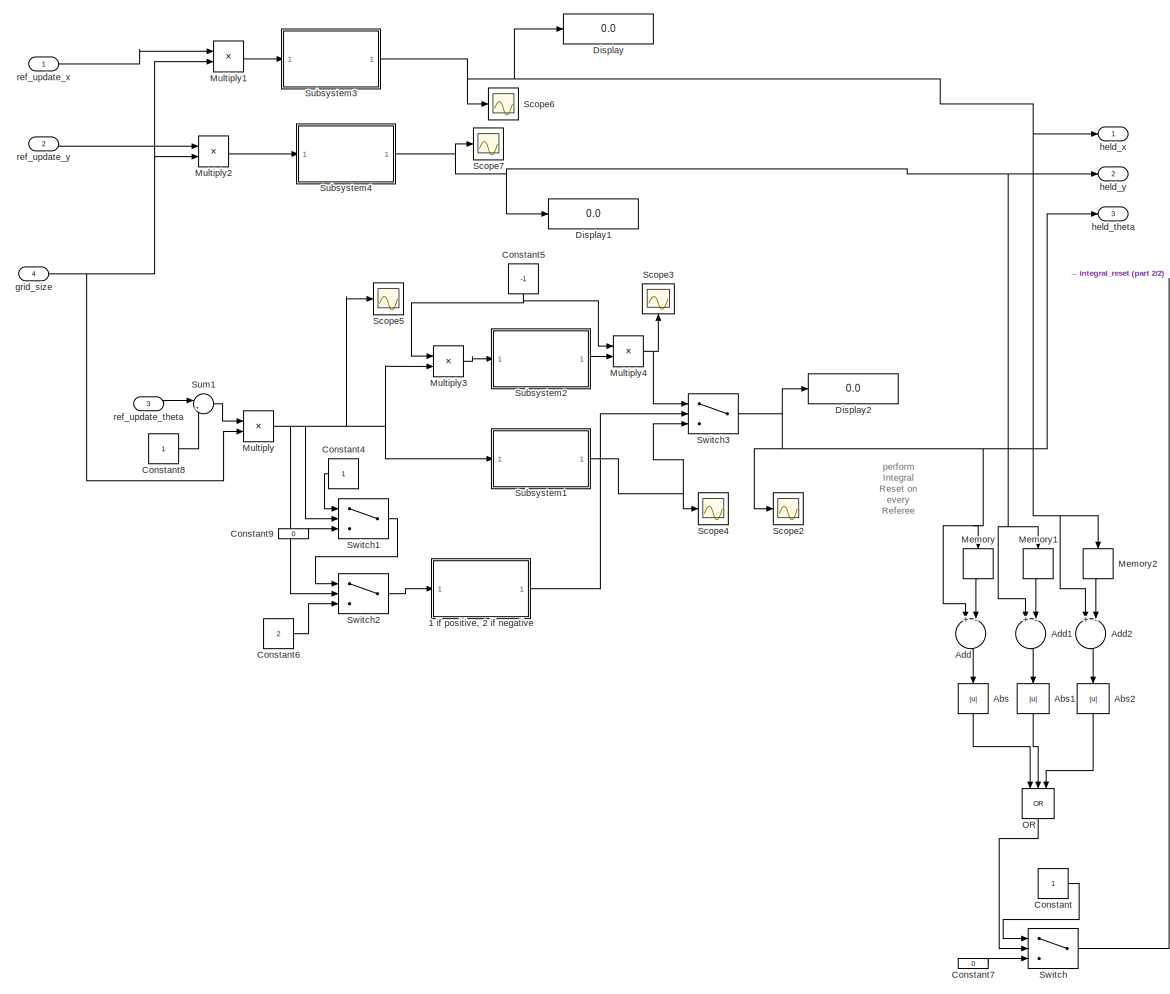
[diagram: root canvas - part 1/2, most of the canvas]
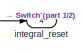
[diagram: root canvas - part 2/2, top right region]
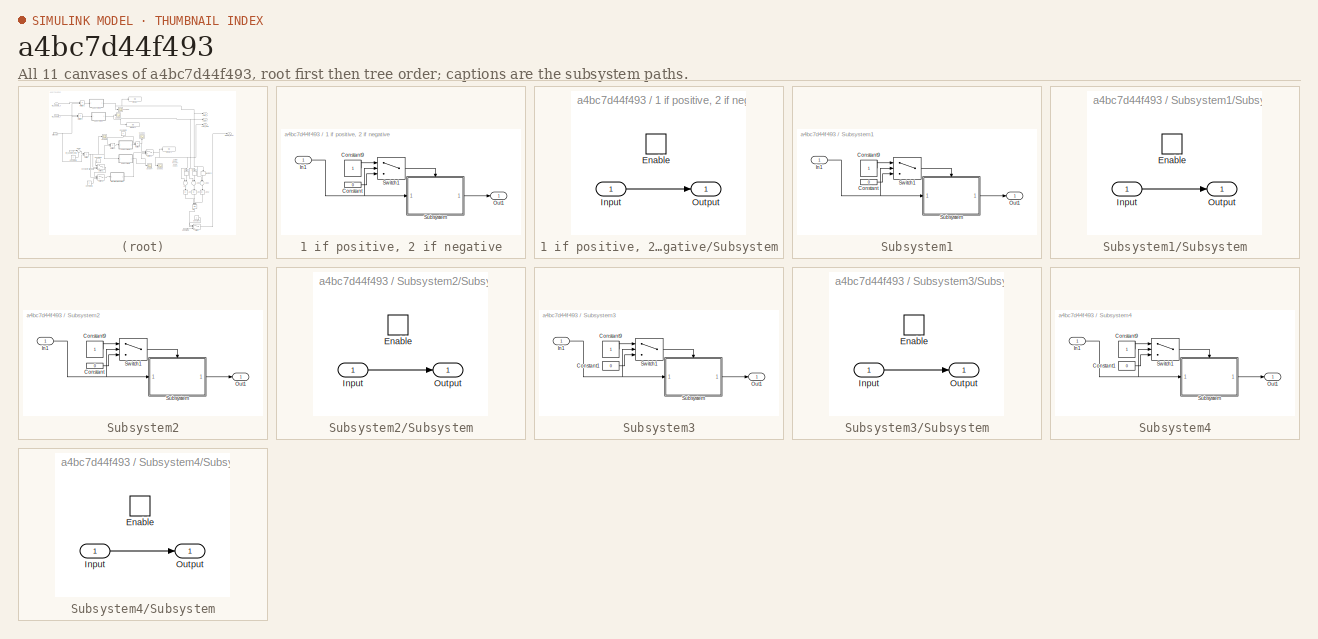
[diagram: thumbnail index - all 11 canvases of the model, root first then tree order]
MODEL slx_a4bc7d44f493
KIND model
CONFIG AbsTol = auto
CONFIG EnableMultiTasking = off
CONFIG FixedStep = auto
CONFIG MaxStep = auto
CONFIG MinStep = auto
CONFIG RelTol = 1e-3
CONFIG SampleTimeConstraint = Unconstrained
CONFIG Solver = VariableStepAuto
CONFIG SolverName = VariableStepAuto
CONFIG StartTime = 0.0
CONFIG StopTime = 10.0
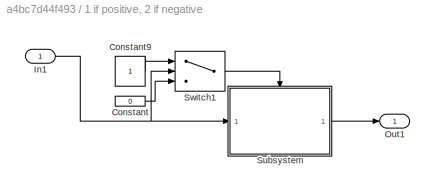
BLOCK [SubSystem] 1 if positive, 2 if negative
  Ports = [1, 1]
  RequestExecContextInheritance = off
BLOCK [Constant] 1 if positive, 2 if negative/Constant
  Value = 0
BLOCK [Constant] 1 if positive, 2 if negative/Constant9
BLOCK [Inport] 1 if positive, 2 if negative/In1
  IconDisplay = Port number
BLOCK [Outport] 1 if positive, 2 if negative/Out1
  IconDisplay = Port number
BLOCK [SubSystem] 1 if positive, 2 if negative/Subsystem
  Ports = [1, 1, 1]
  RequestExecContextInheritance = off
BLOCK [EnablePort] 1 if positive, 2 if negative/Subsystem/Enable
  Ports = []
BLOCK [Inport] 1 if positive, 2 if negative/Subsystem/Input
  IconDisplay = Port number
BLOCK [Outport] 1 if positive, 2 if negative/Subsystem/Output
  IconDisplay = Port number
BLOCK [Switch] 1 if positive, 2 if negative/Switch1
  Criteria = u2 > Threshold
  InputSameDT = off
  SaturateOnIntegerOverflow = off
BLOCK [Abs] Abs
  SaturateOnIntegerOverflow = off
BLOCK [Abs] Abs1
  SaturateOnIntegerOverflow = off
BLOCK [Abs] Abs2
  SaturateOnIntegerOverflow = off
BLOCK [Sum] Add
  InputSameDT = off
  Inputs = +-
  OutDataTypeStr = Inherit: Inherit via internal rule
  Ports = [2, 1]
  SaturateOnIntegerOverflow = off
BLOCK [Sum] Add1
  InputSameDT = off
  Inputs = +-
  OutDataTypeStr = Inherit: Inherit via internal rule
  Ports = [2, 1]
  SaturateOnIntegerOverflow = off
BLOCK [Sum] Add2
  InputSameDT = off
  Inputs = +-
  OutDataTypeStr = Inherit: Inherit via internal rule
  Ports = [2, 1]
  SaturateOnIntegerOverflow = off
BLOCK [Constant] Constant
BLOCK [Constant] Constant4
BLOCK [Constant] Constant5
  Value = -1
BLOCK [Constant] Constant6
  Value = 2
BLOCK [Constant] Constant7
  Value = 0
BLOCK [Constant] Constant8
BLOCK [Constant] Constant9
  Value = 0
BLOCK [Display] Display
  Decimation = 1
  Ports = [1]
BLOCK [Display] Display1
  Decimation = 1
  Ports = [1]
BLOCK [Display] Display2
  Decimation = 1
  Ports = [1]
BLOCK [Memory] Memory
BLOCK [Memory] Memory1
BLOCK [Memory] Memory2
BLOCK [Product] Multiply
  InputSameDT = off
  OutDataTypeStr = Inherit: Inherit via internal rule
  Ports = [2, 1]
  RndMeth = Floor
  SaturateOnIntegerOverflow = off
BLOCK [Product] Multiply1
  InputSameDT = off
  OutDataTypeStr = Inherit: Inherit via internal rule
  Ports = [2, 1]
  RndMeth = Floor
  SaturateOnIntegerOverflow = off
BLOCK [Product] Multiply2
  InputSameDT = off
  OutDataTypeStr = Inherit: Inherit via internal rule
  Ports = [2, 1]
  RndMeth = Floor
  SaturateOnIntegerOverflow = off
BLOCK [Product] Multiply3
  InputSameDT = off
  OutDataTypeStr = Inherit: Inherit via internal rule
  Ports = [2, 1]
  RndMeth = Floor
  SaturateOnIntegerOverflow = off
BLOCK [Product] Multiply4
  InputSameDT = off
  OutDataTypeStr = Inherit: Inherit via internal rule
  Ports = [2, 1]
  RndMeth = Floor
  SaturateOnIntegerOverflow = off
BLOCK [Logic] OR
  AllPortsSameDT = off
  IconShape = distinctive
  Inputs = 3
  Operator = OR
  OutDataTypeStr = boolean
  Ports = [3, 1]
BLOCK [Scope] Scope2
  Floating = off
  NumInputPorts = 1
  Ports = [1]
  ScopeSpecificationString = Simulink.scopes.TimeScopeBlockCfg('CurrentConfiguration', extmgr.ConfigurationSet(extmgr.Configuration('Core','General UI',true),extmgr.Configuration('Core','Source UI',true),extmgr.Configuration('Sources','WiredSimulink',true,'DataLoggingVariableName','ScopeData1'),extmgr.Configuration('Visuals','Time Domain',true,'SerializedDisplays',{struct('MinYLimReal','-112.25','MaxYLimReal','110.25','YLabel...<+1388ch>
BLOCK [Scope] Scope3
  Floating = off
  NumInputPorts = 1
  Ports = [1]
  ScopeSpecificationString = Simulink.scopes.TimeScopeBlockCfg('CurrentConfiguration', extmgr.ConfigurationSet(extmgr.Configuration('Core','General UI',true),extmgr.Configuration('Core','Source UI',true),extmgr.Configuration('Sources','WiredSimulink',true,'DataLoggingVariableName','ScopeData2'),extmgr.Configuration('Visuals','Time Domain',true,'SerializedDisplays',{struct('MinYLimReal','-180','MaxYLimReal','180','YLabelReal',...<+1485ch>
BLOCK [Scope] Scope4
  Floating = off
  NumInputPorts = 1
  Ports = [1]
  ScopeSpecificationString = Simulink.scopes.TimeScopeBlockCfg('CurrentConfiguration', extmgr.ConfigurationSet(extmgr.Configuration('Core','General UI',true),extmgr.Configuration('Core','Source UI',true),extmgr.Configuration('Sources','WiredSimulink',true,'DataLoggingVariableName','ScopeData3'),extmgr.Configuration('Visuals','Time Domain',true,'SerializedDisplays',{struct('MinYLimReal','-180','MaxYLimReal','180','YLabelReal',...<+1485ch>
BLOCK [Scope] Scope5
  Floating = off
  NumInputPorts = 1
  Ports = [1]
  ScopeSpecificationString = Simulink.scopes.TimeScopeBlockCfg('CurrentConfiguration', extmgr.ConfigurationSet(extmgr.Configuration('Core','General UI',true),extmgr.Configuration('Core','Source UI',true),extmgr.Configuration('Sources','WiredSimulink',true,'DataLoggingVariableName','ScopeData4'),extmgr.Configuration('Visuals','Time Domain',true,'SerializedDisplays',{struct('MinYLimReal','-180','MaxYLimReal','180','YLabelReal',...<+1446ch>
BLOCK [Scope] Scope6
  Floating = off
  NumInputPorts = 1
  Ports = [1]
  ScopeSpecificationString = Simulink.scopes.TimeScopeBlockCfg('CurrentConfiguration', extmgr.ConfigurationSet(extmgr.Configuration('Core','General UI',true),extmgr.Configuration('Core','Source UI',true),extmgr.Configuration('Sources','WiredSimulink',true,'DataLoggingVariableName','ScopeData5'),extmgr.Configuration('Visuals','Time Domain',true,'SerializedDisplays',{struct('MinYLimReal','-1.00000','MaxYLimReal','1.00000','YLab...<+1369ch>
BLOCK [Scope] Scope7
  Floating = off
  NumInputPorts = 1
  Ports = [1]
  ScopeSpecificationString = Simulink.scopes.TimeScopeBlockCfg('CurrentConfiguration', extmgr.ConfigurationSet(extmgr.Configuration('Core','General UI',true),extmgr.Configuration('Core','Source UI',true),extmgr.Configuration('Sources','WiredSimulink',true),extmgr.Configuration('Visuals','Time Domain',true,'SerializedDisplays',{struct('MinYLimReal','-1.00000','MaxYLimReal','1.00000','YLabelReal','','MinYLimMag','0.00000','MaxY...<+1377ch>
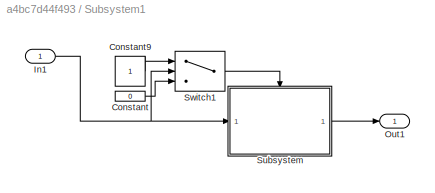
BLOCK [SubSystem] Subsystem1
  Ports = [1, 1]
  RequestExecContextInheritance = off
BLOCK [Constant] Subsystem1/Constant
  Value = 0
BLOCK [Constant] Subsystem1/Constant9
BLOCK [Inport] Subsystem1/In1
  IconDisplay = Port number
BLOCK [Outport] Subsystem1/Out1
  IconDisplay = Port number
BLOCK [SubSystem] Subsystem1/Subsystem
  Ports = [1, 1, 1]
  RequestExecContextInheritance = off
BLOCK [EnablePort] Subsystem1/Subsystem/Enable
  Ports = []
BLOCK [Inport] Subsystem1/Subsystem/Input
  IconDisplay = Port number
BLOCK [Outport] Subsystem1/Subsystem/Output
  IconDisplay = Port number
BLOCK [Switch] Subsystem1/Switch1
  Criteria = u2 > Threshold
  InputSameDT = off
  SaturateOnIntegerOverflow = off
BLOCK [SubSystem] Subsystem2
  Ports = [1, 1]
  RequestExecContextInheritance = off
BLOCK [Constant] Subsystem2/Constant
  Value = 0
BLOCK [Constant] Subsystem2/Constant9
BLOCK [Inport] Subsystem2/In1
  IconDisplay = Port number
BLOCK [Outport] Subsystem2/Out1
  IconDisplay = Port number
BLOCK [SubSystem] Subsystem2/Subsystem
  Ports = [1, 1, 1]
  RequestExecContextInheritance = off
BLOCK [EnablePort] Subsystem2/Subsystem/Enable
  Ports = []
BLOCK [Inport] Subsystem2/Subsystem/Input
  IconDisplay = Port number
BLOCK [Outport] Subsystem2/Subsystem/Output
  IconDisplay = Port number
BLOCK [Switch] Subsystem2/Switch1
  Criteria = u2 > Threshold
  InputSameDT = off
  SaturateOnIntegerOverflow = off
BLOCK [SubSystem] Subsystem3
  Ports = [1, 1]
  RequestExecContextInheritance = off
BLOCK [Constant] Subsystem3/Constant1
  Value = 0
BLOCK [Constant] Subsystem3/Constant9
BLOCK [Inport] Subsystem3/In1
  IconDisplay = Port number
BLOCK [Outport] Subsystem3/Out1
  IconDisplay = Port number
BLOCK [SubSystem] Subsystem3/Subsystem
  Ports = [1, 1, 1]
  RequestExecContextInheritance = off
BLOCK [EnablePort] Subsystem3/Subsystem/Enable
  Ports = []
BLOCK [Inport] Subsystem3/Subsystem/Input
  IconDisplay = Port number
BLOCK [Outport] Subsystem3/Subsystem/Output
  IconDisplay = Port number
BLOCK [Switch] Subsystem3/Switch1
  Criteria = u2 > Threshold
  InputSameDT = off
  SaturateOnIntegerOverflow = off
BLOCK [SubSystem] Subsystem4
  Ports = [1, 1]
  RequestExecContextInheritance = off
BLOCK [Constant] Subsystem4/Constant1
  Value = 0
BLOCK [Constant] Subsystem4/Constant9
BLOCK [Inport] Subsystem4/In1
  IconDisplay = Port number
BLOCK [Outport] Subsystem4/Out1
  IconDisplay = Port number
BLOCK [SubSystem] Subsystem4/Subsystem
  Ports = [1, 1, 1]
  RequestExecContextInheritance = off
BLOCK [EnablePort] Subsystem4/Subsystem/Enable
  Ports = []
BLOCK [Inport] Subsystem4/Subsystem/Input
  IconDisplay = Port number
BLOCK [Outport] Subsystem4/Subsystem/Output
  IconDisplay = Port number
BLOCK [Switch] Subsystem4/Switch1
  Criteria = u2 > Threshold
  InputSameDT = off
  SaturateOnIntegerOverflow = off
BLOCK [Sum] Sum1
  IconShape = round
  InputSameDT = off
  Inputs = |++
  OutDataTypeStr = Inherit: Inherit via internal rule
  Ports = [2, 1]
  SaturateOnIntegerOverflow = off
BLOCK [Switch] Switch
  Criteria = u2 > Threshold
  InputSameDT = off
  SaturateOnIntegerOverflow = off
BLOCK [Switch] Switch1
  Criteria = u2 > Threshold
  InputSameDT = off
  SaturateOnIntegerOverflow = off
BLOCK [Switch] Switch2
  InputSameDT = off
  SaturateOnIntegerOverflow = off
BLOCK [Switch] Switch3
  Criteria = u2 > Threshold
  InputSameDT = off
  SaturateOnIntegerOverflow = off
  Threshold = 1
BLOCK [Inport] grid_size 
  IconDisplay = Port number
  Port = 4
BLOCK [Outport] held_theta
  IconDisplay = Port number
  Port = 3
BLOCK [Outport] held_x
  IconDisplay = Port number
BLOCK [Outport] held_y
  IconDisplay = Port number
  Port = 2
BLOCK [Outport] integral_reset
  IconDisplay = Port number
  Port = 4
BLOCK [Inport] ref_update_theta
  IconDisplay = Port number
  Port = 3
BLOCK [Inport] ref_update_x
  IconDisplay = Port number
BLOCK [Inport] ref_update_y
  IconDisplay = Port number
  Port = 2
ANNOTATION (root): perform Integral Reset on every Referee Update
LINE 1 if positive, 2 if negative/Constant9:1 -> 1 if positive, 2 if negative/Switch1:1
LINE 1 if positive, 2 if negative/Constant:1 -> 1 if positive, 2 if negative/Switch1:3
NET 1 if positive, 2 if negative/In1:1 -> 1 if positive, 2 if negative/Subsystem:1, 1 if positive, 2 if negative/Switch1:2
LINE 1 if positive, 2 if negative/Subsystem/Input:1 -> 1 if positive, 2 if negative/Subsystem/Output:1
LINE 1 if positive, 2 if negative/Subsystem:1 -> 1 if positive, 2 if negative/Out1:1
LINE 1 if positive, 2 if negative/Switch1:1 -> 1 if positive, 2 if negative/Subsystem:enable
LINE 1 if positive, 2 if negative:1 -> Switch3:2
LINE Abs1:1 -> OR:2
LINE Abs2:1 -> OR:3
LINE Abs:1 -> OR:1
LINE Add1:1 -> Abs1:1
LINE Add2:1 -> Abs2:1
LINE Add:1 -> Abs:1
LINE Constant4:1 -> Switch1:1
NET Constant5:1 -> Multiply3:1, Multiply4:1
LINE Constant6:1 -> Switch2:3
LINE Constant7:1 -> Switch:3
LINE Constant8:1 -> Sum1:2
LINE Constant9:1 -> Switch1:3
LINE Constant:1 -> Switch:1
LINE Memory1:1 -> Add1:2
LINE Memory2:1 -> Add2:2
LINE Memory:1 -> Add:2
LINE Multiply1:1 -> Subsystem3:1
LINE Multiply2:1 -> Subsystem4:1
LINE Multiply3:1 -> Subsystem2:1
NET Multiply4:1 -> Scope3:1, Switch3:1
NET Multiply:1 -> Multiply3:2, Scope5:1, Subsystem1:1, Switch1:2, Switch2:2
LINE OR:1 -> Switch:2
LINE Subsystem1/Constant9:1 -> Subsystem1/Switch1:1
LINE Subsystem1/Constant:1 -> Subsystem1/Switch1:3
NET Subsystem1/In1:1 -> Subsystem1/Subsystem:1, Subsystem1/Switch1:2
LINE Subsystem1/Subsystem/Input:1 -> Subsystem1/Subsystem/Output:1
LINE Subsystem1/Subsystem:1 -> Subsystem1/Out1:1
LINE Subsystem1/Switch1:1 -> Subsystem1/Subsystem:enable
NET Subsystem1:1 -> Scope4:1, Switch3:3
LINE Subsystem2/Constant9:1 -> Subsystem2/Switch1:1
LINE Subsystem2/Constant:1 -> Subsystem2/Switch1:3
NET Subsystem2/In1:1 -> Subsystem2/Subsystem:1, Subsystem2/Switch1:2
LINE Subsystem2/Subsystem/Input:1 -> Subsystem2/Subsystem/Output:1
LINE Subsystem2/Subsystem:1 -> Subsystem2/Out1:1
LINE Subsystem2/Switch1:1 -> Subsystem2/Subsystem:enable
LINE Subsystem2:1 -> Multiply4:2
LINE Subsystem3/Constant1:1 -> Subsystem3/Switch1:3
LINE Subsystem3/Constant9:1 -> Subsystem3/Switch1:1
NET Subsystem3/In1:1 -> Subsystem3/Subsystem:1, Subsystem3/Switch1:2
LINE Subsystem3/Subsystem/Input:1 -> Subsystem3/Subsystem/Output:1
LINE Subsystem3/Subsystem:1 -> Subsystem3/Out1:1
LINE Subsystem3/Switch1:1 -> Subsystem3/Subsystem:enable
NET Subsystem3:1 -> Add2:1, Display:1, Memory2:1, Scope6:1, held_x:1
LINE Subsystem4/Constant1:1 -> Subsystem4/Switch1:3
LINE Subsystem4/Constant9:1 -> Subsystem4/Switch1:1
NET Subsystem4/In1:1 -> Subsystem4/Subsystem:1, Subsystem4/Switch1:2
LINE Subsystem4/Subsystem/Input:1 -> Subsystem4/Subsystem/Output:1
LINE Subsystem4/Subsystem:1 -> Subsystem4/Out1:1
LINE Subsystem4/Switch1:1 -> Subsystem4/Subsystem:enable
NET Subsystem4:1 -> Add1:1, Display1:1, Memory1:1, Scope7:1, held_y:1
LINE Sum1:1 -> Multiply:1
LINE Switch1:1 -> Switch2:1
LINE Switch2:1 -> 1 if positive, 2 if negative:1
NET Switch3:1 -> Add:1, Display2:1, Memory:1, Scope2:1, held_theta:1
LINE Switch:1 -> integral_reset:1
NET grid_size :1 -> Multiply1:2, Multiply2:2, Multiply:2
LINE ref_update_theta:1 -> Sum1:1
LINE ref_update_x:1 -> Multiply1:1
LINE ref_update_y:1 -> Multiply2:1
note: NET lines group one-source signal fan-out (src -> all destinations, sorted); 1:1 wires keep LINE
